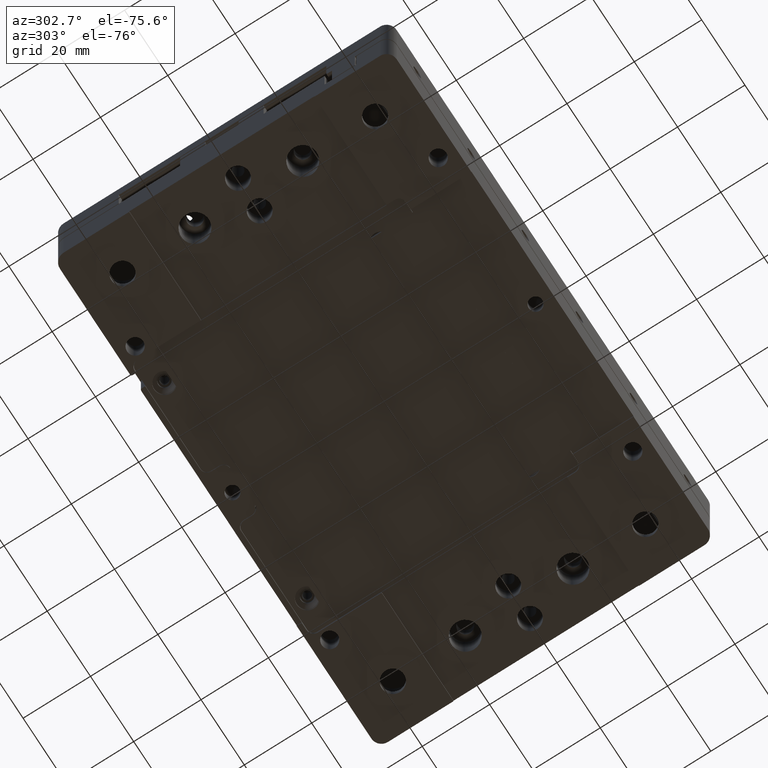
[diagram: clean part render]
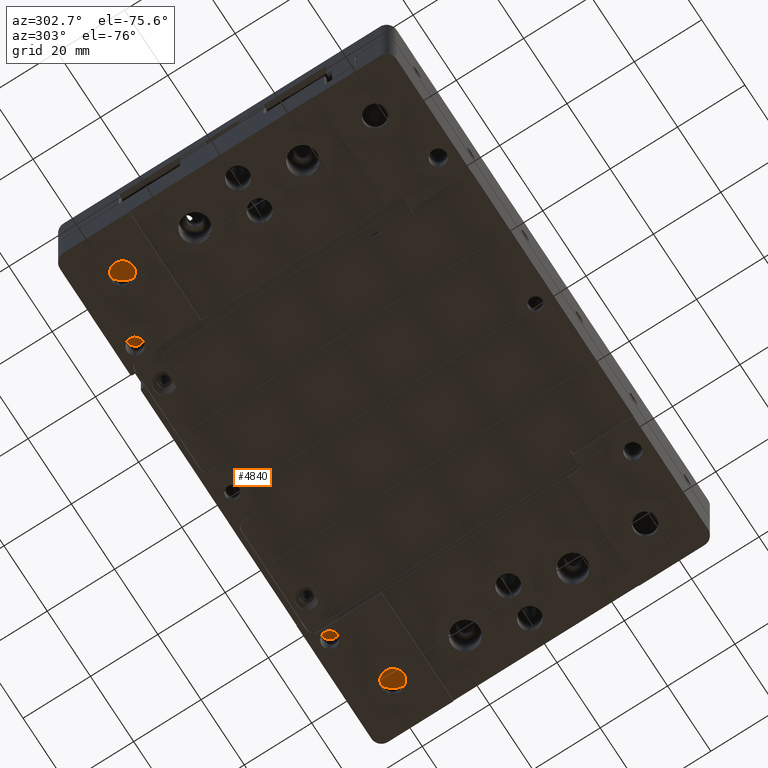
[diagram: same view with one face highlighted and labeled with its STEP entity id]
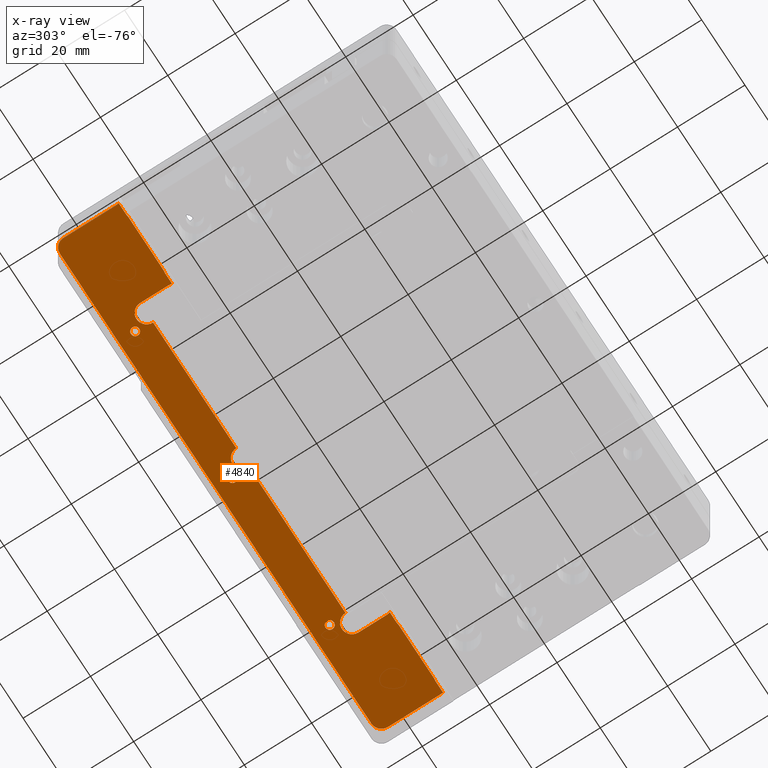
[diagram: x-ray of the same camera — body ghosted, the highlighted face saturated]
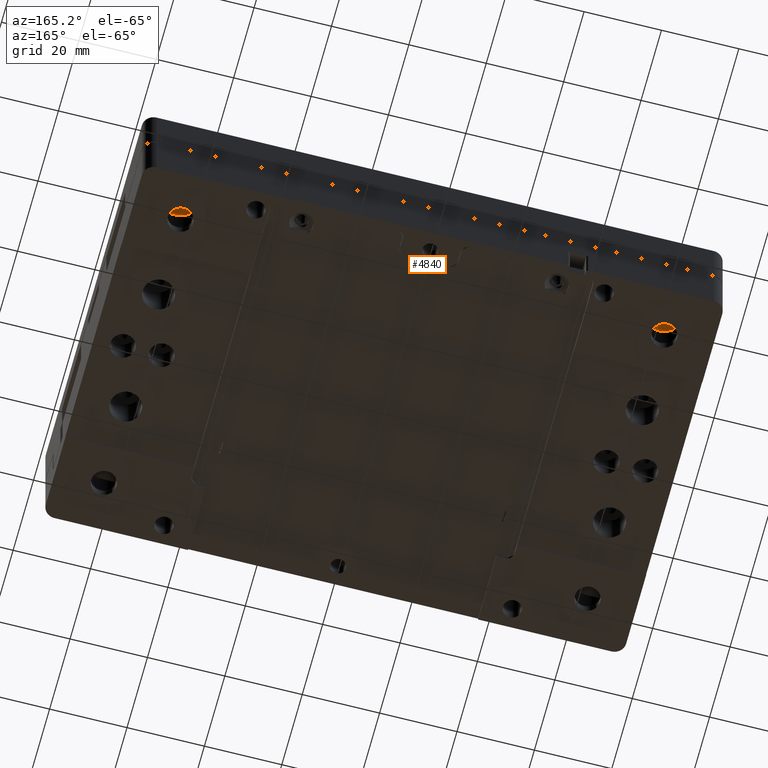
[diagram: same view with one face highlighted and labeled with its STEP entity id]
A machine part, auxiliary view. The second image highlights one B-rep face of the part: STEP entity #4840.
The next image is the same camera in x-ray: the body ghosted, the highlighted face saturated — about 0% of this face is hidden behind the body in this view.
A second angle (auxiliary view) of the same face is appended — the face is thin or edge-on in the first view.
In plain terms, the highlighted planar face has unit normal (0, 0, -1).
Its self-contained STEP definition (entity closure, byte-faithful):
#5 = DIRECTION ( 'NONE',  ( -1.000000000000000000, 0.000000000000000000, -0.000000000000000000 ) ) ;
#108 = EDGE_CURVE ( 'NONE', #17169, #15369, #15457, .T. ) ;
#308 = CARTESIAN_POINT ( 'NONE',  ( -53.50000000000000000, 30.60000000000000142, 0.5000000000000003331 ) ) ;
#332 = AXIS2_PLACEMENT_3D ( 'NONE', #5122, #12034, #18979 ) ;
#400 = AXIS2_PLACEMENT_3D ( 'NONE', #19502, #10865, #16739 ) ;
#592 = CIRCLE ( 'NONE', #7851, 3.000000000000002665 ) ;
#863 = EDGE_CURVE ( 'NONE', #3630, #3630, #5393, .T. ) ;
#889 = EDGE_CURVE ( 'NONE', #17492, #20456, #22053, .T. ) ;
#985 = CARTESIAN_POINT ( 'NONE',  ( 71.50000000000001421, 28.10000000000000497, 0.5000000000000004441 ) ) ;
#988 = VERTEX_POINT ( 'NONE', #19251 ) ;
#1086 = EDGE_CURVE ( 'NONE', #12613, #11734, #7086, .T. ) ;
#1348 = CARTESIAN_POINT ( 'NONE',  ( 44.50000000000000000, 40.00000000000000000, 0.5000000000000000000 ) ) ;
#1408 = VECTOR ( 'NONE', #20819, 1000.000000000000000 ) ;
#1599 = VERTEX_POINT ( 'NONE', #2725 ) ;
#1603 = CIRCLE ( 'NONE', #2696, 1.250000000000001110 ) ;
#1623 = CARTESIAN_POINT ( 'NONE',  ( 54.20000000000000995, 30.50000000000000000, 0.5000000000000003331 ) ) ;
#1918 = EDGE_CURVE ( 'NONE', #12644, #18242, #19921, .T. ) ;
#1948 = ORIENTED_EDGE ( 'NONE', *, *, #18246, .T. ) ;
#2057 = DIRECTION ( 'NONE',  ( -1.000000000000000000, 0.000000000000000000, -0.000000000000000000 ) ) ;
#2092 = DIRECTION ( 'NONE',  ( -1.000000000000000000, 0.000000000000000000, -0.000000000000000000 ) ) ;
#2319 = CARTESIAN_POINT ( 'NONE',  ( 47.50000000000000000, 40.00000000000000000, 0.5000000000000000000 ) ) ;
#2696 = AXIS2_PLACEMENT_3D ( 'NONE', #8508, #20781, #17366 ) ;
#2698 = EDGE_CURVE ( 'NONE', #3137, #12644, #19548, .T. ) ;
#2725 = CARTESIAN_POINT ( 'NONE',  ( 75.00000000000000000, 47.00000000000000000, 0.5000000000000002220 ) ) ;
#2800 = DIRECTION ( 'NONE',  ( -1.000000000000000000, 0.000000000000000000, 0.000000000000000000 ) ) ;
#2872 = EDGE_LOOP ( 'NONE', ( #12112, #13203, #17737, #16766, #1948, #13906, #21127, #6544, #10967, #8800, #16636, #8146, #5800, #15726, #14006, #13573, #21182, #11892, #10182, #11950, #6741, #4025, #3438, #6652 ) ) ;
#2877 = VERTEX_POINT ( 'NONE', #11245 ) ;
#2884 = FACE_BOUND ( 'NONE', #5107, .T. ) ;
#2890 = CARTESIAN_POINT ( 'NONE',  ( 71.50000000000001421, 30.60000000000000142, 0.5000000000000003331 ) ) ;
#2933 = CARTESIAN_POINT ( 'NONE',  ( -50.50000000000000000, 30.50000000000000000, 0.5000000000000000000 ) ) ;
#2983 = CIRCLE ( 'NONE', #22199, 3.000000000000000000 ) ;
#3002 = FACE_OUTER_BOUND ( 'NONE', #2872, .T. ) ;
#3137 = VERTEX_POINT ( 'NONE', #5454 ) ;
#3438 = ORIENTED_EDGE ( 'NONE', *, *, #16841, .F. ) ;
#3591 = LINE ( 'NONE', #20850, #5535 ) ;
#3597 = DIRECTION ( 'NONE',  ( -1.000000000000000000, 0.000000000000000000, -0.000000000000000000 ) ) ;
#3630 = VERTEX_POINT ( 'NONE', #13607 ) ;
#3683 = DIRECTION ( 'NONE',  ( -0.000000000000000000, -0.000000000000000000, 1.000000000000000000 ) ) ;
#3931 = VECTOR ( 'NONE', #4577, 1000.000000000000000 ) ;
#4025 = ORIENTED_EDGE ( 'NONE', *, *, #7762, .F. ) ;
#4051 = DIRECTION ( 'NONE',  ( 0.000000000000000000, 0.000000000000000000, 1.000000000000000000 ) ) ;
#4176 = AXIS2_PLACEMENT_3D ( 'NONE', #8886, #15926, #21152 ) ;
#4577 = DIRECTION ( 'NONE',  ( 0.000000000000000000, 1.000000000000000000, 0.000000000000000000 ) ) ;
#4580 = VERTEX_POINT ( 'NONE', #15307 ) ;
#4767 = CARTESIAN_POINT ( 'NONE',  ( 75.00000000000000000, 0.000000000000000000, 0.5000000000000000000 ) ) ;
#4786 = EDGE_LOOP ( 'NONE', ( #11342 ) ) ;
#4836 = AXIS2_PLACEMENT_3D ( 'NONE', #13997, #3683, #17205 ) ;
#4840 = ADVANCED_FACE ( 'NONE', ( #2884, #16200, #9813, #3002 ), #8220, .T. ) ;
#4858 = AXIS2_PLACEMENT_3D ( 'NONE', #21100, #20984, #5769 ) ;
#4995 = LINE ( 'NONE', #4767, #6621 ) ;
#5027 = AXIS2_PLACEMENT_3D ( 'NONE', #11632, #13551, #11744 ) ;
#5107 = EDGE_LOOP ( 'NONE', ( #16398 ) ) ;
#5122 = CARTESIAN_POINT ( 'NONE',  ( -47.50000000000000000, 40.00000000000000000, 0.5000000000000000000 ) ) ;
#5129 = CARTESIAN_POINT ( 'NONE',  ( -44.50000000000000000, 40.00000000000000000, 0.5000000000000000000 ) ) ;
#5265 = EDGE_LOOP ( 'NONE', ( #6575 ) ) ;
#5342 = DIRECTION ( 'NONE',  ( -1.000000000000000000, -0.000000000000000000, 0.000000000000000000 ) ) ;
#5393 = CIRCLE ( 'NONE', #5027, 1.250000000000001110 ) ;
#5454 = CARTESIAN_POINT ( 'NONE',  ( -5.999999999999997335, 40.00000000000000000, 0.5000000000000000000 ) ) ;
#5507 = DIRECTION ( 'NONE',  ( -0.000000000000000000, 1.000000000000000000, 0.000000000000000000 ) ) ;
#5535 = VECTOR ( 'NONE', #2092, 1000.000000000000000 ) ;
#5538 = CARTESIAN_POINT ( 'NONE',  ( 72.00000000000001421, 50.00000000000000000, 0.5000000000000004441 ) ) ;
#5769 = DIRECTION ( 'NONE',  ( -1.000000000000000000, -1.387778780781444492E-15, 0.000000000000000000 ) ) ;
#5776 = EDGE_CURVE ( 'NONE', #988, #1599, #4995, .T. ) ;
#5800 = ORIENTED_EDGE ( 'NONE', *, *, #14437, .T. ) ;
#5962 = EDGE_CURVE ( 'NONE', #4580, #3137, #2983, .T. ) ;
#6023 = EDGE_CURVE ( 'NONE', #6618, #17169, #14942, .T. ) ;
#6260 = CARTESIAN_POINT ( 'NONE',  ( -75.00000000000000000, 30.60000000000000142, 0.5000000000000000000 ) ) ;
#6470 = AXIS2_PLACEMENT_3D ( 'NONE', #8456, #10040, #15137 ) ;
#6544 = ORIENTED_EDGE ( 'NONE', *, *, #21771, .T. ) ;
#6567 = VERTEX_POINT ( 'NONE', #20381 ) ;
#6575 = ORIENTED_EDGE ( 'NONE', *, *, #18712, .T. ) ;
#6618 = VERTEX_POINT ( 'NONE', #2890 ) ;
#6621 = VECTOR ( 'NONE', #20664, 1000.000000000000000 ) ;
#6652 = ORIENTED_EDGE ( 'NONE', *, *, #5776, .F. ) ;
#6741 = ORIENTED_EDGE ( 'NONE', *, *, #20387, .F. ) ;
#6830 = VECTOR ( 'NONE', #5, 1000.000000000000000 ) ;
#7086 = LINE ( 'NONE', #14001, #18810 ) ;
#7162 = DIRECTION ( 'NONE',  ( -1.000000000000000000, 0.000000000000000000, -0.000000000000000000 ) ) ;
#7217 = LINE ( 'NONE', #12537, #19084 ) ;
#7294 = VERTEX_POINT ( 'NONE', #13129 ) ;
#7546 = EDGE_CURVE ( 'NONE', #10049, #21317, #7217, .T. ) ;
#7689 = DIRECTION ( 'NONE',  ( -1.000000000000000000, 0.000000000000000000, 0.000000000000000000 ) ) ;
#7762 = EDGE_CURVE ( 'NONE', #13223, #11503, #21521, .T. ) ;
#7851 = AXIS2_PLACEMENT_3D ( 'NONE', #2319, #17659, #8912 ) ;
#7912 = DIRECTION ( 'NONE',  ( -0.000000000000000000, -0.000000000000000000, 1.000000000000000000 ) ) ;
#8146 = ORIENTED_EDGE ( 'NONE', *, *, #1918, .T. ) ;
#8217 = CARTESIAN_POINT ( 'NONE',  ( -71.99999670298223009, 49.99999999999638334, 0.5000000000000004441 ) ) ;
#8220 = PLANE ( 'NONE',  #400 ) ;
#8353 = CARTESIAN_POINT ( 'NONE',  ( 53.50000000000000000, 28.10000000000000497, 0.5000000000000004441 ) ) ;
#8437 = LINE ( 'NONE', #22282, #1408 ) ;
#8456 = CARTESIAN_POINT ( 'NONE',  ( 47.50000000000000000, 31.50000000000000000, 0.5000000000000000000 ) ) ;
#8508 = CARTESIAN_POINT ( 'NONE',  ( -45.00000000000000000, 45.00000000000000000, 0.5000000000000004441 ) ) ;
#8641 = CARTESIAN_POINT ( 'NONE',  ( -71.50000000000001421, 28.10000000000000497, 0.5000000000000004441 ) ) ;
#8649 = EDGE_CURVE ( 'NONE', #21024, #4580, #12306, .T. ) ;
#8672 = CIRCLE ( 'NONE', #22084, 2.500000000000002220 ) ;
#8743 = CARTESIAN_POINT ( 'NONE',  ( -75.00000000000000000, 50.00000000000000000, 0.5000000000000004441 ) ) ;
#8769 = CARTESIAN_POINT ( 'NONE',  ( -75.00000000000000000, 30.60000000000000142, 0.5000000000000000000 ) ) ;
#8800 = ORIENTED_EDGE ( 'NONE', *, *, #5962, .T. ) ;
#8886 = CARTESIAN_POINT ( 'NONE',  ( -72.00000000000001421, 47.00000000000000000, 0.5000000000000004441 ) ) ;
#8912 = DIRECTION ( 'NONE',  ( -1.000000000000000000, 0.000000000000000000, 0.000000000000000000 ) ) ;
#8958 = EDGE_CURVE ( 'NONE', #20456, #2877, #13192, .T. ) ;
#8960 = LINE ( 'NONE', #17703, #6830 ) ;
#9005 = CARTESIAN_POINT ( 'NONE',  ( -46.25000000000000000, 45.00000000000000000, 0.5000000000000004441 ) ) ;
#9433 = VECTOR ( 'NONE', #16897, 1000.000000000000000 ) ;
#9677 = CIRCLE ( 'NONE', #15491, 2.500000000000002220 ) ;
#9813 = FACE_BOUND ( 'NONE', #4786, .T. ) ;
#9823 = EDGE_CURVE ( 'NONE', #15369, #19397, #8672, .T. ) ;
#10040 = DIRECTION ( 'NONE',  ( -0.000000000000000000, -0.000000000000000000, 1.000000000000000000 ) ) ;
#10049 = VERTEX_POINT ( 'NONE', #14446 ) ;
#10182 = ORIENTED_EDGE ( 'NONE', *, *, #13586, .T. ) ;
#10495 = VECTOR ( 'NONE', #20710, 1000.000000000000000 ) ;
#10616 = CIRCLE ( 'NONE', #13133, 3.000000000000002665 ) ;
#10709 = CARTESIAN_POINT ( 'NONE',  ( -1.250000000000000000, 45.00000000000000000, 0.5000000000000004441 ) ) ;
#10865 = DIRECTION ( 'NONE',  ( 0.000000000000000000, 0.000000000000000000, -1.000000000000000000 ) ) ;
#10967 = ORIENTED_EDGE ( 'NONE', *, *, #8649, .T. ) ;
#10970 = DIRECTION ( 'NONE',  ( 1.000000000000000000, 0.000000000000000000, 0.000000000000000000 ) ) ;
#11093 = CARTESIAN_POINT ( 'NONE',  ( -3.000000000000000000, 40.00000000000000000, 0.5000000000000000000 ) ) ;
#11245 = CARTESIAN_POINT ( 'NONE',  ( 50.50000000000000000, 40.00000000000000000, 0.5000000000000000000 ) ) ;
#11342 = ORIENTED_EDGE ( 'NONE', *, *, #863, .T. ) ;
#11503 = VERTEX_POINT ( 'NONE', #8217 ) ;
#11519 = DIRECTION ( 'NONE',  ( -1.000000000000000000, -4.163336342344333082E-15, 0.000000000000000000 ) ) ;
#11548 = LINE ( 'NONE', #2933, #9433 ) ;
#11632 = CARTESIAN_POINT ( 'NONE',  ( 45.00000000000000000, 45.00000000000000000, 0.5000000000000004441 ) ) ;
#11734 = VERTEX_POINT ( 'NONE', #12400 ) ;
#11744 = DIRECTION ( 'NONE',  ( -1.000000000000000000, 0.000000000000000000, 0.000000000000000000 ) ) ;
#11777 = VECTOR ( 'NONE', #7162, 1000.000000000000000 ) ;
#11892 = ORIENTED_EDGE ( 'NONE', *, *, #22085, .T. ) ;
#11950 = ORIENTED_EDGE ( 'NONE', *, *, #1086, .T. ) ;
#12034 = DIRECTION ( 'NONE',  ( -0.000000000000000000, -0.000000000000000000, 1.000000000000000000 ) ) ;
#12112 = ORIENTED_EDGE ( 'NONE', *, *, #12821, .T. ) ;
#12306 = LINE ( 'NONE', #20945, #15509 ) ;
#12348 = CARTESIAN_POINT ( 'NONE',  ( -70.79999999999999716, 30.50000000000000000, 0.5000000000000003331 ) ) ;
#12400 = CARTESIAN_POINT ( 'NONE',  ( -75.00000000000000000, 47.00000000000000000, 0.5000000000000002220 ) ) ;
#12537 = CARTESIAN_POINT ( 'NONE',  ( -75.00000000000000000, 30.60000000000000142, 0.5000000000000000000 ) ) ;
#12613 = VERTEX_POINT ( 'NONE', #6260 ) ;
#12644 = VERTEX_POINT ( 'NONE', #5129 ) ;
#12821 = EDGE_CURVE ( 'NONE', #988, #6618, #8960, .T. ) ;
#12984 = CIRCLE ( 'NONE', #18461, 3.000000000000002665 ) ;
#13129 = CARTESIAN_POINT ( 'NONE',  ( -54.20000000000000995, 30.50000000000000000, 0.5000000000000003331 ) ) ;
#13133 = AXIS2_PLACEMENT_3D ( 'NONE', #19618, #4051, #10970 ) ;
#13192 = LINE ( 'NONE', #14780, #3931 ) ;
#13203 = ORIENTED_EDGE ( 'NONE', *, *, #6023, .T. ) ;
#13223 = VERTEX_POINT ( 'NONE', #5538 ) ;
#13268 = EDGE_CURVE ( 'NONE', #20543, #10049, #12984, .T. ) ;
#13551 = DIRECTION ( 'NONE',  ( -0.000000000000000000, -0.000000000000000000, 1.000000000000000000 ) ) ;
#13573 = ORIENTED_EDGE ( 'NONE', *, *, #17884, .T. ) ;
#13577 = EDGE_CURVE ( 'NONE', #7294, #21395, #8437, .T. ) ;
#13586 = EDGE_CURVE ( 'NONE', #6567, #12613, #20586, .T. ) ;
#13607 = CARTESIAN_POINT ( 'NONE',  ( 43.75000000000000000, 45.00000000000000000, 0.5000000000000004441 ) ) ;
#13675 = DIRECTION ( 'NONE',  ( -0.000000000000000000, -0.000000000000000000, 1.000000000000000000 ) ) ;
#13776 = CARTESIAN_POINT ( 'NONE',  ( 50.36181760425080256, 30.59999999999988418, 0.5000000000000000000 ) ) ;
#13906 = ORIENTED_EDGE ( 'NONE', *, *, #889, .T. ) ;
#13997 = CARTESIAN_POINT ( 'NONE',  ( 0.000000000000000000, 45.00000000000000000, 0.5000000000000004441 ) ) ;
#14001 = CARTESIAN_POINT ( 'NONE',  ( -75.00000000000000000, 0.000000000000000000, 0.5000000000000000000 ) ) ;
#14006 = ORIENTED_EDGE ( 'NONE', *, *, #7546, .T. ) ;
#14310 = CIRCLE ( 'NONE', #4176, 3.000000000000002665 ) ;
#14434 = VERTEX_POINT ( 'NONE', #10709 ) ;
#14437 = EDGE_CURVE ( 'NONE', #18242, #20543, #11548, .T. ) ;
#14446 = CARTESIAN_POINT ( 'NONE',  ( -50.36181760425041887, 30.60000000000000142, 0.5000000000000001110 ) ) ;
#14495 = DIRECTION ( 'NONE',  ( -0.000000000000000000, -0.000000000000000000, 1.000000000000000000 ) ) ;
#14571 = CARTESIAN_POINT ( 'NONE',  ( 70.79999999999998295, 30.50000000000000000, 0.5000000000000003331 ) ) ;
#14615 = CIRCLE ( 'NONE', #4858, 2.500000000000002220 ) ;
#14780 = CARTESIAN_POINT ( 'NONE',  ( 50.50000000000000000, 30.50000000000000000, 0.5000000000000000000 ) ) ;
#14942 = CIRCLE ( 'NONE', #16774, 2.500000000000002220 ) ;
#15137 = DIRECTION ( 'NONE',  ( -1.000000000000000000, -4.625929269271481378E-15, 0.000000000000000000 ) ) ;
#15307 = CARTESIAN_POINT ( 'NONE',  ( 0.000000000000000000, 40.00000000000000000, 0.5000000000000000000 ) ) ;
#15369 = VERTEX_POINT ( 'NONE', #1623 ) ;
#15457 = LINE ( 'NONE', #17398, #11777 ) ;
#15491 = AXIS2_PLACEMENT_3D ( 'NONE', #8641, #17506, #17611 ) ;
#15509 = VECTOR ( 'NONE', #17541, 1000.000000000000000 ) ;
#15726 = ORIENTED_EDGE ( 'NONE', *, *, #13268, .T. ) ;
#15926 = DIRECTION ( 'NONE',  ( -0.000000000000000000, -0.000000000000000000, 1.000000000000000000 ) ) ;
#16200 = FACE_BOUND ( 'NONE', #5265, .T. ) ;
#16319 = VECTOR ( 'NONE', #2057, 1000.000000000000000 ) ;
#16398 = ORIENTED_EDGE ( 'NONE', *, *, #19573, .T. ) ;
#16567 = CARTESIAN_POINT ( 'NONE',  ( 53.50000000000000711, 30.60000000000000142, 0.5000000000000003331 ) ) ;
#16636 = ORIENTED_EDGE ( 'NONE', *, *, #2698, .T. ) ;
#16739 = DIRECTION ( 'NONE',  ( -1.000000000000000000, 0.000000000000000000, -0.000000000000000000 ) ) ;
#16766 = ORIENTED_EDGE ( 'NONE', *, *, #9823, .T. ) ;
#16774 = AXIS2_PLACEMENT_3D ( 'NONE', #985, #14495, #2800 ) ;
#16841 = EDGE_CURVE ( 'NONE', #1599, #13223, #10616, .T. ) ;
#16897 = DIRECTION ( 'NONE',  ( -0.000000000000000000, -1.000000000000000000, -0.000000000000000000 ) ) ;
#17169 = VERTEX_POINT ( 'NONE', #14571 ) ;
#17205 = DIRECTION ( 'NONE',  ( -1.000000000000000000, 0.000000000000000000, 0.000000000000000000 ) ) ;
#17366 = DIRECTION ( 'NONE',  ( -1.000000000000000000, 0.000000000000000000, 0.000000000000000000 ) ) ;
#17398 = CARTESIAN_POINT ( 'NONE',  ( -75.00000000000000000, 30.50000000000000000, 0.5000000000000000000 ) ) ;
#17492 = VERTEX_POINT ( 'NONE', #13776 ) ;
#17506 = DIRECTION ( 'NONE',  ( -0.000000000000000000, -0.000000000000000000, 1.000000000000000000 ) ) ;
#17541 = DIRECTION ( 'NONE',  ( -1.000000000000000000, 0.000000000000000000, -0.000000000000000000 ) ) ;
#17565 = CARTESIAN_POINT ( 'NONE',  ( -47.50000000000000000, 31.50000000000000000, 0.5000000000000000000 ) ) ;
#17611 = DIRECTION ( 'NONE',  ( -1.000000000000000000, 1.526556658859588981E-14, 0.000000000000000000 ) ) ;
#17659 = DIRECTION ( 'NONE',  ( -0.000000000000000000, -0.000000000000000000, 1.000000000000000000 ) ) ;
#17703 = CARTESIAN_POINT ( 'NONE',  ( -75.00000000000000000, 30.60000000000000142, 0.5000000000000000000 ) ) ;
#17737 = ORIENTED_EDGE ( 'NONE', *, *, #108, .T. ) ;
#17884 = EDGE_CURVE ( 'NONE', #21317, #7294, #14615, .T. ) ;
#18242 = VERTEX_POINT ( 'NONE', #21181 ) ;
#18246 = EDGE_CURVE ( 'NONE', #19397, #17492, #3591, .T. ) ;
#18461 = AXIS2_PLACEMENT_3D ( 'NONE', #17565, #19386, #19282 ) ;
#18620 = CIRCLE ( 'NONE', #4836, 1.250000000000000000 ) ;
#18712 = EDGE_CURVE ( 'NONE', #14434, #14434, #18620, .T. ) ;
#18799 = CARTESIAN_POINT ( 'NONE',  ( -75.00000000000000000, 40.00000000000000000, 0.5000000000000000000 ) ) ;
#18810 = VECTOR ( 'NONE', #5507, 1000.000000000000000 ) ;
#18979 = DIRECTION ( 'NONE',  ( -1.000000000000000000, 0.000000000000000000, 0.000000000000000000 ) ) ;
#19084 = VECTOR ( 'NONE', #3597, 1000.000000000000000 ) ;
#19251 = CARTESIAN_POINT ( 'NONE',  ( 75.00000000000000000, 30.60000000000000142, 0.5000000000000001110 ) ) ;
#19282 = DIRECTION ( 'NONE',  ( -1.000000000000000000, 0.000000000000000000, 0.000000000000000000 ) ) ;
#19386 = DIRECTION ( 'NONE',  ( -0.000000000000000000, -0.000000000000000000, 1.000000000000000000 ) ) ;
#19397 = VERTEX_POINT ( 'NONE', #16567 ) ;
#19458 = VERTEX_POINT ( 'NONE', #9005 ) ;
#19502 = CARTESIAN_POINT ( 'NONE',  ( -75.00000000000000000, 30.50000000000000000, 0.5000000000000000000 ) ) ;
#19548 = LINE ( 'NONE', #18799, #16319 ) ;
#19562 = CARTESIAN_POINT ( 'NONE',  ( -50.50000000000000000, 31.50000000000000000, 0.5000000000000000000 ) ) ;
#19573 = EDGE_CURVE ( 'NONE', #19458, #19458, #1603, .T. ) ;
#19618 = CARTESIAN_POINT ( 'NONE',  ( 72.00000000000001421, 47.00000000000000000, 0.5000000000000004441 ) ) ;
#19921 = CIRCLE ( 'NONE', #332, 3.000000000000002665 ) ;
#20381 = CARTESIAN_POINT ( 'NONE',  ( -71.50000000000001421, 30.60000000000000142, 0.5000000000000003331 ) ) ;
#20387 = EDGE_CURVE ( 'NONE', #11503, #11734, #14310, .T. ) ;
#20456 = VERTEX_POINT ( 'NONE', #20826 ) ;
#20543 = VERTEX_POINT ( 'NONE', #19562 ) ;
#20586 = LINE ( 'NONE', #8769, #10495 ) ;
#20664 = DIRECTION ( 'NONE',  ( -0.000000000000000000, 1.000000000000000000, 0.000000000000000000 ) ) ;
#20710 = DIRECTION ( 'NONE',  ( -1.000000000000000000, 0.000000000000000000, -0.000000000000000000 ) ) ;
#20781 = DIRECTION ( 'NONE',  ( -0.000000000000000000, -0.000000000000000000, 1.000000000000000000 ) ) ;
#20819 = DIRECTION ( 'NONE',  ( -1.000000000000000000, 0.000000000000000000, -0.000000000000000000 ) ) ;
#20826 = CARTESIAN_POINT ( 'NONE',  ( 50.50000000000000000, 31.50000000000000000, 0.5000000000000000000 ) ) ;
#20850 = CARTESIAN_POINT ( 'NONE',  ( -75.00000000000000000, 30.60000000000000142, 0.5000000000000000000 ) ) ;
#20945 = CARTESIAN_POINT ( 'NONE',  ( -75.00000000000000000, 40.00000000000000000, 0.5000000000000000000 ) ) ;
#20984 = DIRECTION ( 'NONE',  ( -0.000000000000000000, -0.000000000000000000, 1.000000000000000000 ) ) ;
#21024 = VERTEX_POINT ( 'NONE', #1348 ) ;
#21100 = CARTESIAN_POINT ( 'NONE',  ( -53.50000000000000000, 28.10000000000000497, 0.5000000000000004441 ) ) ;
#21127 = ORIENTED_EDGE ( 'NONE', *, *, #8958, .T. ) ;
#21152 = DIRECTION ( 'NONE',  ( -1.000000000000000000, 0.000000000000000000, 0.000000000000000000 ) ) ;
#21181 = CARTESIAN_POINT ( 'NONE',  ( -50.50000000000000000, 40.00000000000000000, 0.5000000000000000000 ) ) ;
#21182 = ORIENTED_EDGE ( 'NONE', *, *, #13577, .T. ) ;
#21317 = VERTEX_POINT ( 'NONE', #308 ) ;
#21395 = VERTEX_POINT ( 'NONE', #12348 ) ;
#21521 = LINE ( 'NONE', #8743, #22333 ) ;
#21771 = EDGE_CURVE ( 'NONE', #2877, #21024, #592, .T. ) ;
#22053 = CIRCLE ( 'NONE', #6470, 3.000000000000002665 ) ;
#22084 = AXIS2_PLACEMENT_3D ( 'NONE', #8353, #13675, #11519 ) ;
#22085 = EDGE_CURVE ( 'NONE', #21395, #6567, #9677, .T. ) ;
#22199 = AXIS2_PLACEMENT_3D ( 'NONE', #11093, #7912, #7689 ) ;
#22282 = CARTESIAN_POINT ( 'NONE',  ( -75.00000000000000000, 30.50000000000000000, 0.5000000000000000000 ) ) ;
#22333 = VECTOR ( 'NONE', #5342, 1000.000000000000000 ) ;